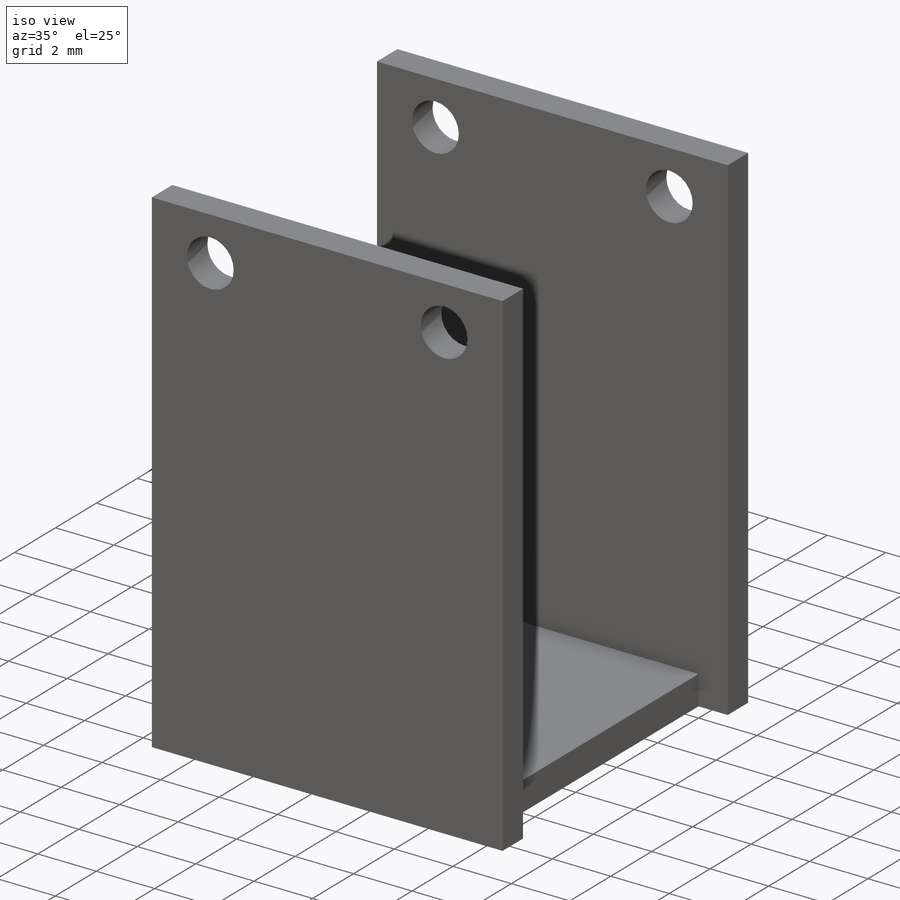
[diagram: iso view]
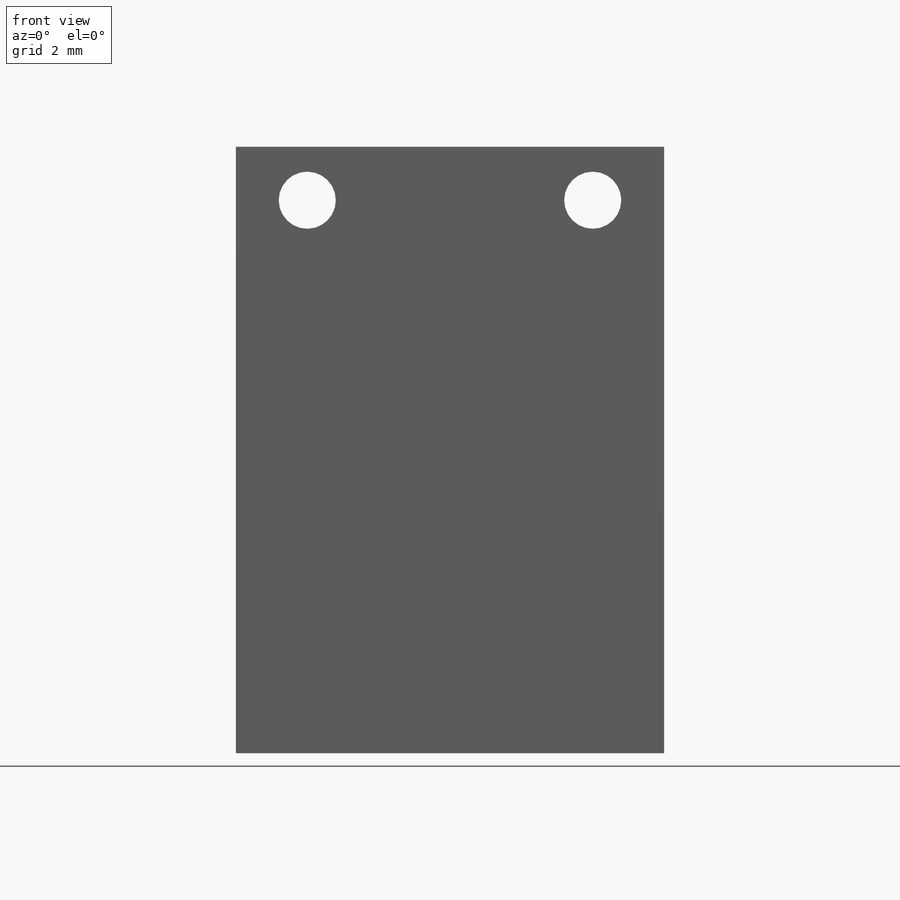
[diagram: front view]
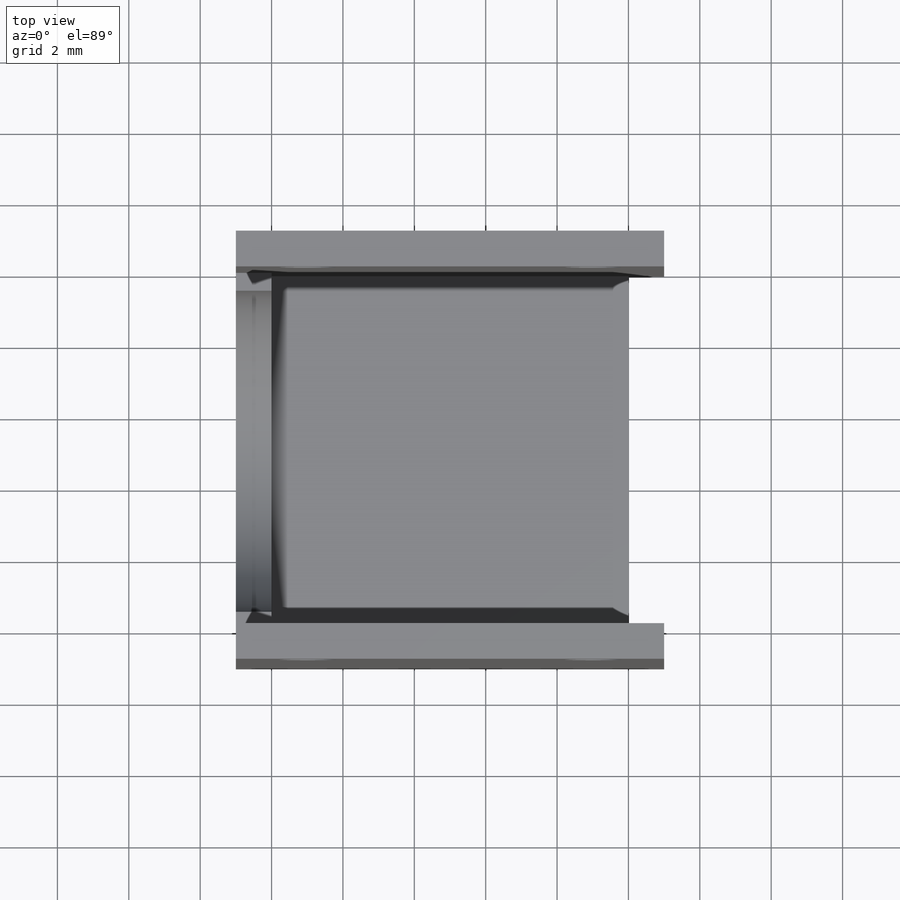
[diagram: top view]
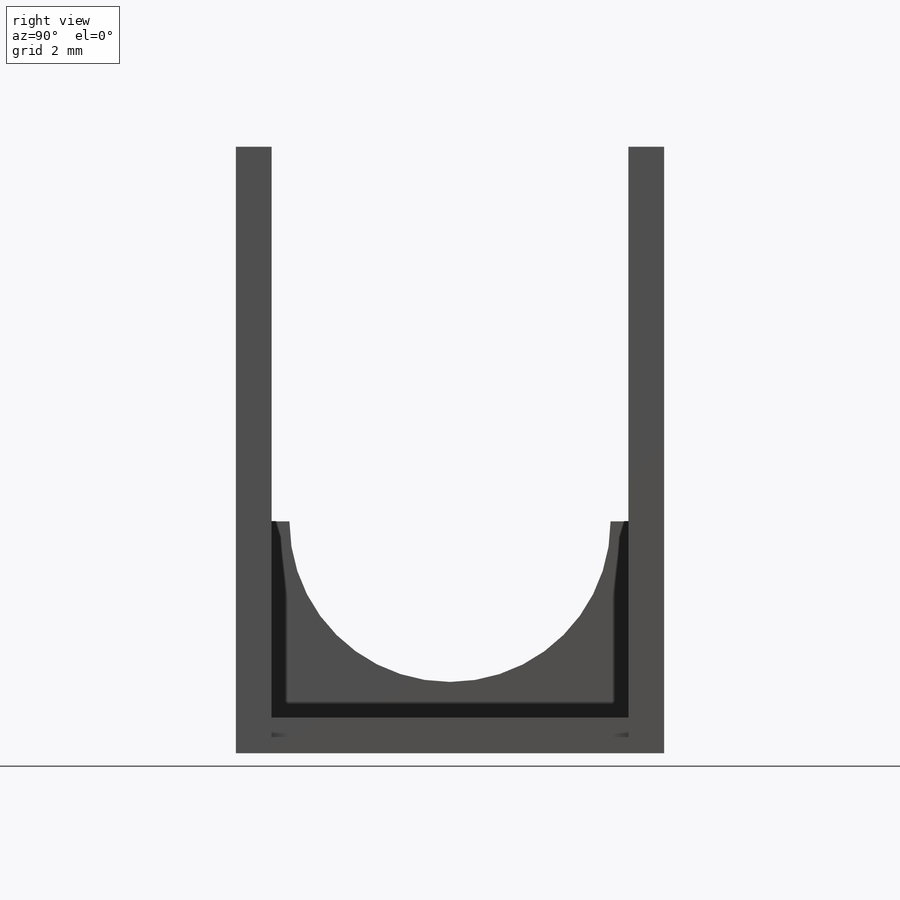
[diagram: right view]
SOLIDWORKS PART (.sldprt)
format: sldprt  version: not decoded by parser v0  size: 529,408 bytes
history: native  units: mm
features: sketch x6, extrude x4, plane x3, thread x2, material x1, hole x1 (+8 scaffold rows collapsed)
feature tree (25):
  scaffold x8  (default folders/planes/origin — collapsed)
  material  "6061 合金"
  plane  "前视基准面"
  plane  "上视基准面"
  plane  "右视基准面"
  sketch  "草图1"  dims[D1=10.0mm D2=10.0mm]
  extrude  "凸台-拉伸1"  Depth=1mm
  sketch  "草图2"  dims[D3=4.5mm D1=10.0mm D2=6.5mm]
  extrude  "凸台-拉伸2"  Depth=1mm
  sketch  "草图4"  dims[D1=12.0mm D2=17.0mm]
  extrude  "凸台-拉伸4"  Depth=1mm
  sketch  "草图5"  dims[D1=0.0mm]
  extrude  "凸台-拉伸5"  Depth=1mm
  hole  "M2 螺纹孔1"  [1 undecoded]
  sketch  "草图7"  dims[c1.D1=1.5mm c1.D2=9.0mm c1.D3=9.0mm c2.D2=2.0mm c2.D3=8.0mm]
  thread  "孔螺蚊线2"  Diameter=4mm  [1 undecoded]
  sketch  "草图6"  dims[hole-wizard template sketch: 46 standard entries collapsed; hole parameters kept: c15.螺纹孔钻头直径=1.6mm c15.螺纹孔钻头深度=11.999mm c15.D3=~14.816244mm c15.导头角度=118.0deg]
  thread  "孔螺蚊线3"  Diameter=4mm  [1 undecoded]
decode coverage: 12 of 13 modeling features carry decoded parameters
note: ~ marks probable driven/reference dimensions
note: 3 parameter values undecoded
note: suppression state not decoded; provenance and decode notes live in map.json
